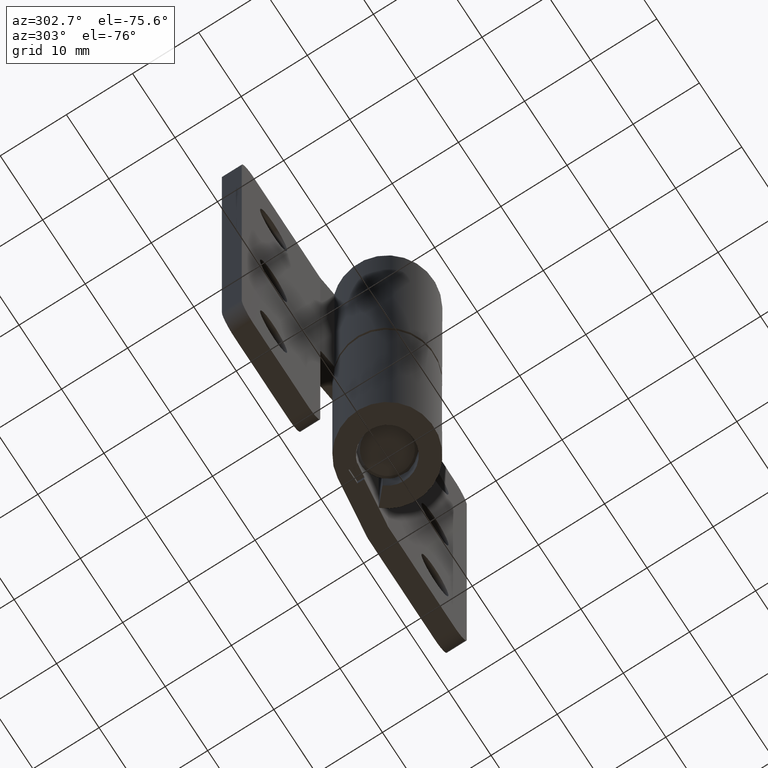
[diagram: clean part render]
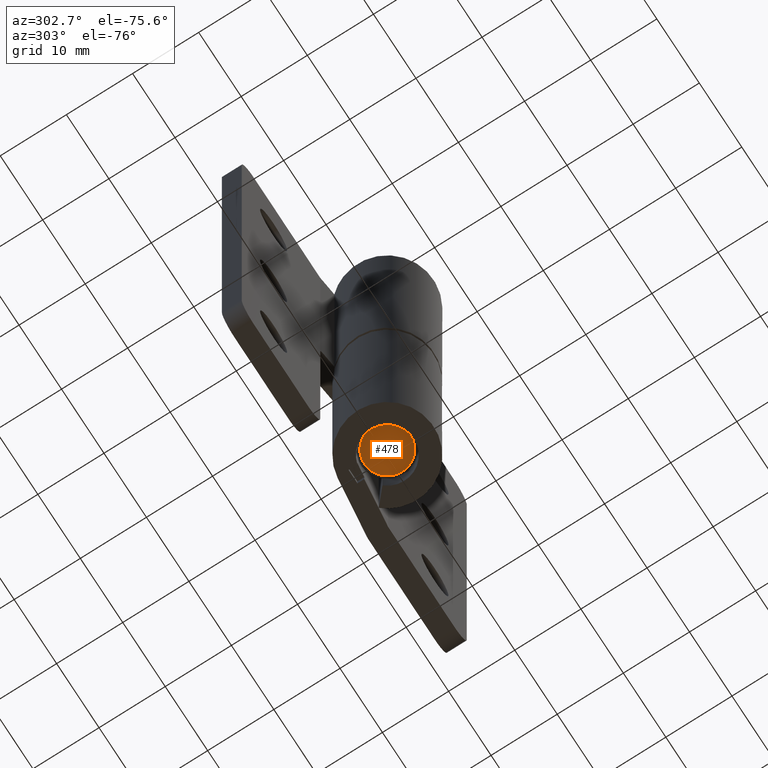
[diagram: same view with one face highlighted and labeled with its STEP entity id]
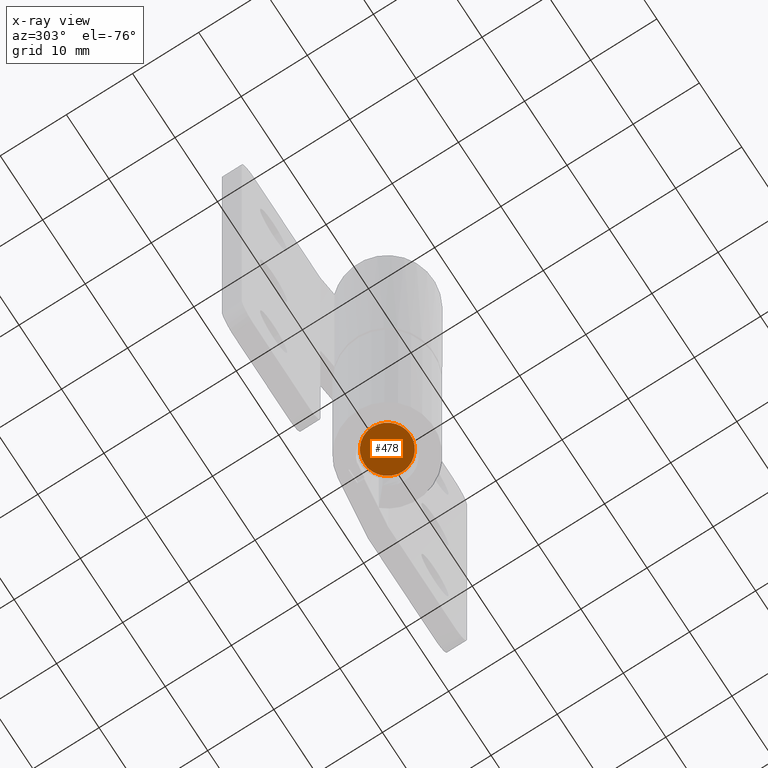
[diagram: x-ray of the same camera — body ghosted, the highlighted face saturated]
A machine part, auxiliary view. The second image highlights one B-rep face of the part: STEP entity #478.
The next image is the same camera in x-ray: the body ghosted, the highlighted face saturated — about 0% of this face is hidden behind the body in this view.
In plain terms, the highlighted face is a freeform B-spline surface patch.
Its self-contained STEP definition (entity closure, byte-faithful):
#407=CARTESIAN_POINT('',(3.849649986818752,3.849563790134654,3.000000000002615));
#408=CARTESIAN_POINT('',(-3.849650174328785,3.849563790134654,3.000000000002615));
#409=CARTESIAN_POINT('',(3.849649986818752,-3.849563727549777,3.000000000002615));
#410=CARTESIAN_POINT('',(-3.849650174328785,-3.849563727549777,3.000000000002615));
#411=B_SPLINE_SURFACE_WITH_KNOTS('',1,1,((#407,#409),(#408,#410)),.UNSPECIFIED.,.F.,.F.,.U.,(2,2),(2,2),(0.0,7.699300161147536),(0.0,7.699127517684431),.UNSPECIFIED.);
#412=CARTESIAN_POINT('',(-0.213669889016824,-3.493471794769017,3.000000000104279));
#413=VERTEX_POINT('',#412);
#414=CARTESIAN_POINT('',(3.500000000362149,0.0,3.000000000005360));
#415=VERTEX_POINT('',#414);
#416=CARTESIAN_POINT('',(-0.213669889016824,-3.493471794769017,3.000000000104279));
#417=CARTESIAN_POINT('',(-0.106934671810310,-3.500000000337166,3.000000000102857));
#418=CARTESIAN_POINT('',(1.164395E-010,-3.500000000335658,3.000000000101347));
#419=CARTESIAN_POINT('',(3.500000000359309,-3.500000000286290,3.000000000051888));
#420=CARTESIAN_POINT('',(3.500000000362149,0.0,3.000000000005360));
#428=(BOUNDED_CURVE()B_SPLINE_CURVE(2,(#416,#417,#418,#419,#420),.UNSPECIFIED.,.F.,.U.)B_SPLINE_CURVE_WITH_KNOTS((3,2,3),(0.739332962205101,0.750000000000000,1.0),.UNSPECIFIED.)CURVE()GEOMETRIC_REPRESENTATION_ITEM()RATIONAL_B_SPLINE_CURVE((0.976072041594187,0.987502787860189,1.0,0.707106781186548,1.0))REPRESENTATION_ITEM(''));
#429=EDGE_CURVE('',#413,#415,#428,.T.);
#430=ORIENTED_EDGE('',*,*,#429,.F.);
#431=CARTESIAN_POINT('',(-3.500000000117551,0.0,3.000000000005360));
#432=VERTEX_POINT('',#431);
#433=CARTESIAN_POINT('',(-3.500000000117551,0.0,3.000000000005360));
#434=CARTESIAN_POINT('',(-3.500000000120570,-3.292471233740117,3.000000000054821));
#435=CARTESIAN_POINT('',(-0.213669889016824,-3.493471794769017,3.000000000104279));
#443=(BOUNDED_CURVE()B_SPLINE_CURVE(2,(#433,#434,#435),.UNSPECIFIED.,.F.,.U.)B_SPLINE_CURVE_WITH_KNOTS((3,3),(0.500000000000000,0.739332962205101),.UNSPECIFIED.)CURVE()GEOMETRIC_REPRESENTATION_ITEM()RATIONAL_B_SPLINE_CURVE((1.0,0.719603993326359,0.976072041594187))REPRESENTATION_ITEM(''));
#444=EDGE_CURVE('',#432,#413,#443,.T.);
#445=ORIENTED_EDGE('',*,*,#444,.F.);
#446=CARTESIAN_POINT('',(0.213669889261422,3.493471794769017,3.000000000104279));
#447=VERTEX_POINT('',#446);
#448=CARTESIAN_POINT('',(0.213669889261422,3.493471794769017,3.000000000104279));
#449=CARTESIAN_POINT('',(0.106934672054908,3.500000000337166,3.000000000102857));
#450=CARTESIAN_POINT('',(1.281584E-010,3.500000000335658,3.000000000101347));
#451=CARTESIAN_POINT('',(-3.500000000114710,3.500000000286290,3.000000000051888));
#452=CARTESIAN_POINT('',(-3.500000000117551,0.0,3.000000000005360));
#460=(BOUNDED_CURVE()B_SPLINE_CURVE(2,(#448,#449,#450,#451,#452),.UNSPECIFIED.,.F.,.U.)B_SPLINE_CURVE_WITH_KNOTS((3,2,3),(0.239332962205101,0.250000000000000,0.500000000000000),.UNSPECIFIED.)CURVE()GEOMETRIC_REPRESENTATION_ITEM()RATIONAL_B_SPLINE_CURVE((0.976072041594187,0.987502787860189,1.0,0.707106781186548,1.0))REPRESENTATION_ITEM(''));
#461=EDGE_CURVE('',#447,#432,#460,.T.);
#462=ORIENTED_EDGE('',*,*,#461,.F.);
#463=CARTESIAN_POINT('',(3.500000000362149,0.0,3.000000000005360));
#464=CARTESIAN_POINT('',(3.500000000365168,3.292471233740117,3.000000000054821));
#465=CARTESIAN_POINT('',(0.213669889261422,3.493471794769017,3.000000000104279));
#473=(BOUNDED_CURVE()B_SPLINE_CURVE(2,(#463,#464,#465),.UNSPECIFIED.,.F.,.U.)B_SPLINE_CURVE_WITH_KNOTS((3,3),(0.0,0.239332962205101),.UNSPECIFIED.)CURVE()GEOMETRIC_REPRESENTATION_ITEM()RATIONAL_B_SPLINE_CURVE((1.0,0.719603993326359,0.976072041594187))REPRESENTATION_ITEM(''));
#474=EDGE_CURVE('',#415,#447,#473,.T.);
#475=ORIENTED_EDGE('',*,*,#474,.F.);
#476=EDGE_LOOP('',(#430,#445,#462,#475));
#477=FACE_OUTER_BOUND('',#476,.T.);
#478=ADVANCED_FACE('',(#477),#411,.F.);